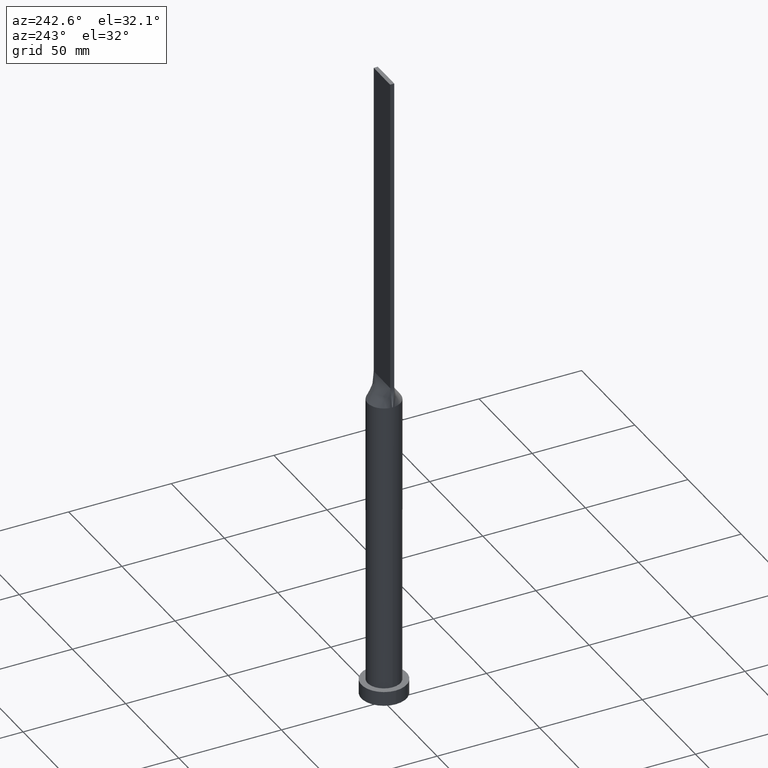
[diagram: clean part render]
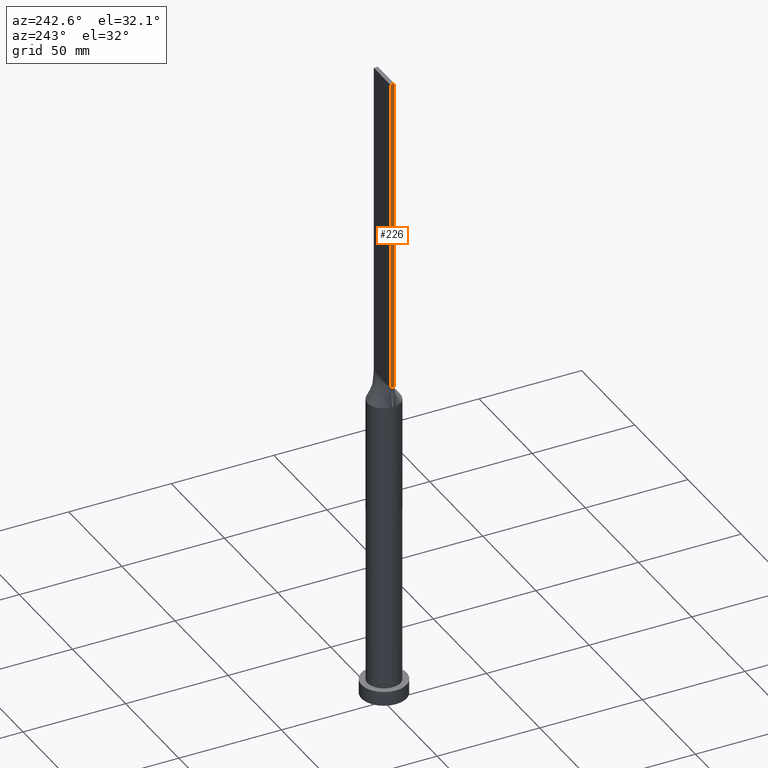
[diagram: same view with one face highlighted and labeled with its STEP entity id]
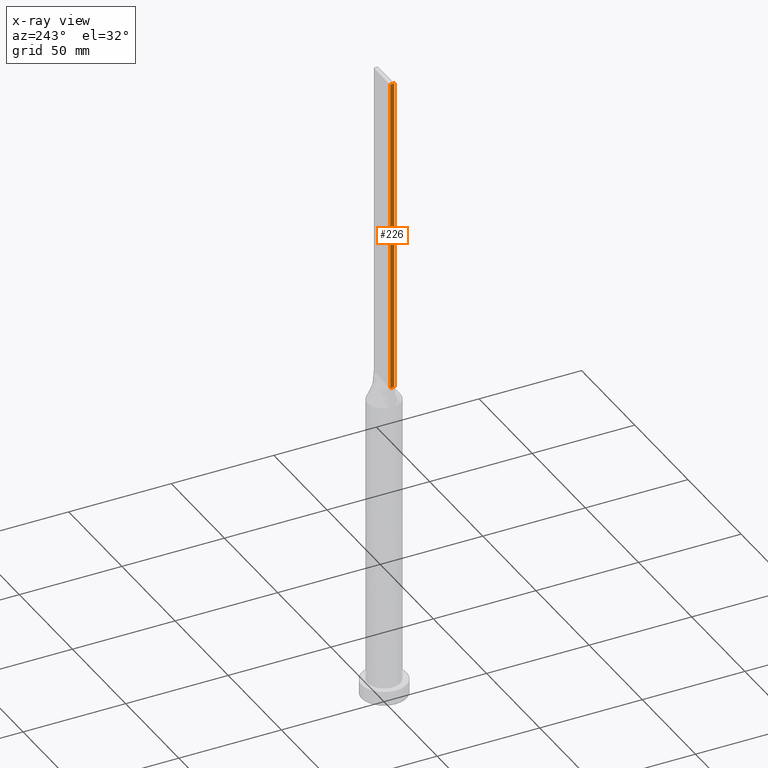
[diagram: x-ray of the same camera — body ghosted, the highlighted face saturated]
A machine part, auxiliary view. The second image highlights one B-rep face of the part: STEP entity #226.
The next image is the same camera in x-ray: the body ghosted, the highlighted face saturated — about 0% of this face is hidden behind the body in this view.
In plain terms, the highlighted planar face has unit normal (1, 0, -0).
Its self-contained STEP definition (entity closure, byte-faithful):
#7 = LINE ( 'NONE', #157, #421 ) ;
#26 = EDGE_CURVE ( 'NONE', #332, #280, #345, .T. ) ;
#48 = DIRECTION ( 'NONE',  ( 0.000000000000000000, -1.000000000000000000, 0.000000000000000000 ) ) ;
#61 = EDGE_CURVE ( 'NONE', #303, #280, #192, .T. ) ;
#82 = CARTESIAN_POINT ( 'NONE',  ( -7.750000000000000000, 1.000000000000000000, 315.0000000000000000 ) ) ;
#84 = ORIENTED_EDGE ( 'NONE', *, *, #61, .F. ) ;
#92 = AXIS2_PLACEMENT_3D ( 'NONE', #250, #447, #160 ) ;
#96 = DIRECTION ( 'NONE',  ( 0.000000000000000000, -1.000000000000000000, 0.000000000000000000 ) ) ;
#140 = EDGE_LOOP ( 'NONE', ( #529, #84, #614, #286 ) ) ;
#157 = CARTESIAN_POINT ( 'NONE',  ( -7.750000000000000000, 1.000000000000000000, 315.0000000000000000 ) ) ;
#158 = VECTOR ( 'NONE', #381, 1000.000000000000000 ) ;
#160 = DIRECTION ( 'NONE',  ( -0.000000000000000000, 0.000000000000000000, -1.000000000000000000 ) ) ;
#189 = VECTOR ( 'NONE', #560, 1000.000000000000000 ) ;
#192 = LINE ( 'NONE', #376, #189 ) ;
#226 = ADVANCED_FACE ( 'NONE', ( #405 ), #297, .F. ) ;
#232 = CARTESIAN_POINT ( 'NONE',  ( -7.750000000000000000, 1.000000000000000000, 315.0000000000000000 ) ) ;
#250 = CARTESIAN_POINT ( 'NONE',  ( -7.750000000000000000, 1.000000000000000000, 315.0000000000000000 ) ) ;
#270 = VECTOR ( 'NONE', #96, 1000.000000000000000 ) ;
#280 = VERTEX_POINT ( 'NONE', #583 ) ;
#286 = ORIENTED_EDGE ( 'NONE', *, *, #425, .T. ) ;
#297 = PLANE ( 'NONE',  #92 ) ;
#303 = VERTEX_POINT ( 'NONE', #609 ) ;
#332 = VERTEX_POINT ( 'NONE', #419 ) ;
#339 = VERTEX_POINT ( 'NONE', #232 ) ;
#345 = LINE ( 'NONE', #438, #270 ) ;
#376 = CARTESIAN_POINT ( 'NONE',  ( -7.750000000000000000, -0.9999999999999986677, 315.0000000000000000 ) ) ;
#381 = DIRECTION ( 'NONE',  ( -0.000000000000000000, -0.000000000000000000, -1.000000000000000000 ) ) ;
#405 = FACE_OUTER_BOUND ( 'NONE', #140, .T. ) ;
#419 = CARTESIAN_POINT ( 'NONE',  ( -7.750000000000000000, 1.000000000000000000, 160.0000000000000000 ) ) ;
#421 = VECTOR ( 'NONE', #48, 1000.000000000000000 ) ;
#425 = EDGE_CURVE ( 'NONE', #339, #332, #524, .T. ) ;
#438 = CARTESIAN_POINT ( 'NONE',  ( -7.750000000000000000, 1.000000000000000000, 160.0000000000000000 ) ) ;
#447 = DIRECTION ( 'NONE',  ( 1.000000000000000000, 0.000000000000000000, -0.000000000000000000 ) ) ;
#524 = LINE ( 'NONE', #82, #158 ) ;
#529 = ORIENTED_EDGE ( 'NONE', *, *, #26, .T. ) ;
#560 = DIRECTION ( 'NONE',  ( -0.000000000000000000, -0.000000000000000000, -1.000000000000000000 ) ) ;
#583 = CARTESIAN_POINT ( 'NONE',  ( -7.750000000000000000, -0.9999999999999986677, 160.0000000000000000 ) ) ;
#609 = CARTESIAN_POINT ( 'NONE',  ( -7.750000000000000000, -0.9999999999999986677, 315.0000000000000000 ) ) ;
#613 = EDGE_CURVE ( 'NONE', #339, #303, #7, .T. ) ;
#614 = ORIENTED_EDGE ( 'NONE', *, *, #613, .F. ) ;